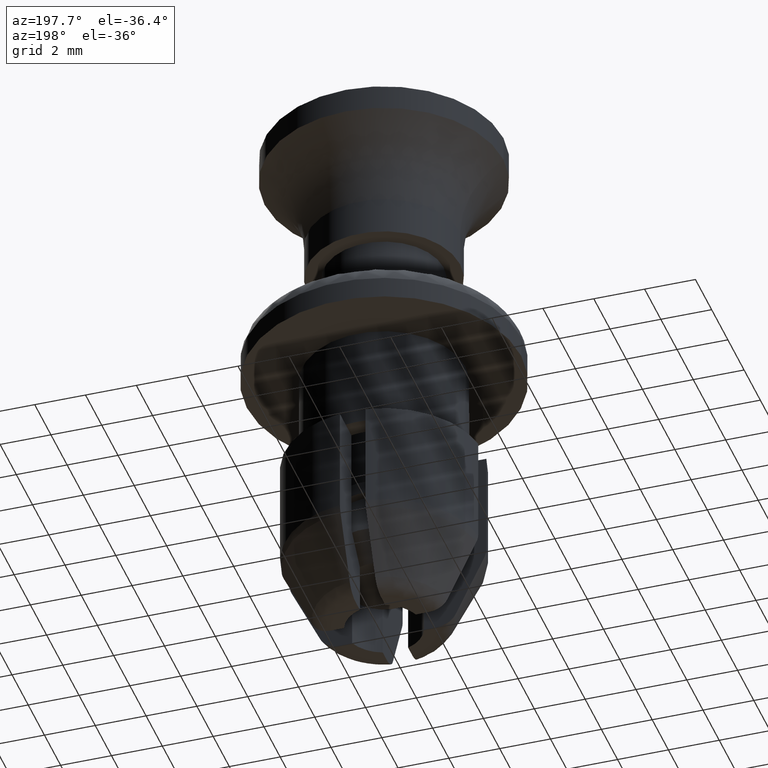
[diagram: clean part render]
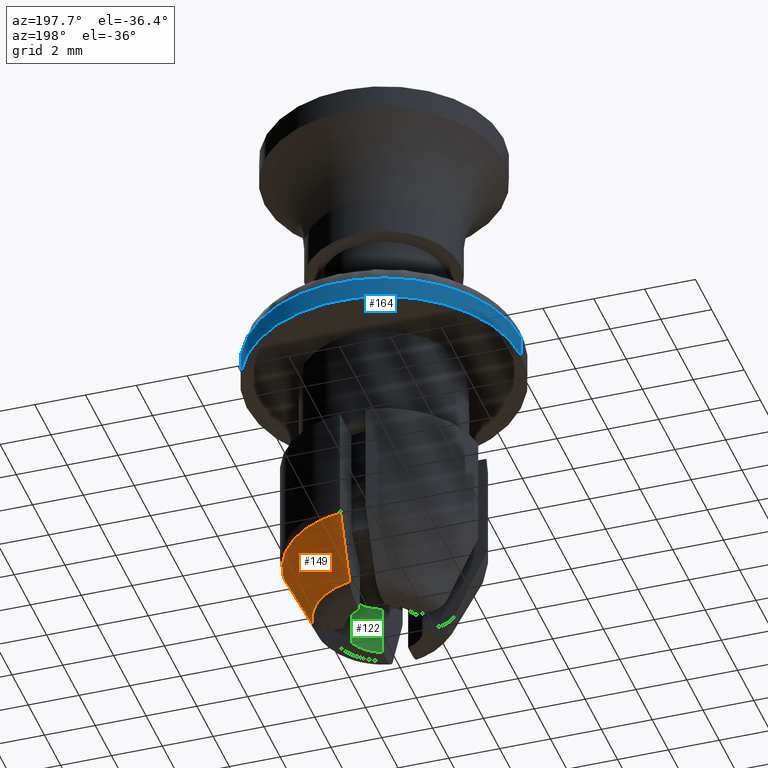
[diagram: same view with three faces highlighted in distinct colors, each labeled with its STEP entity id]
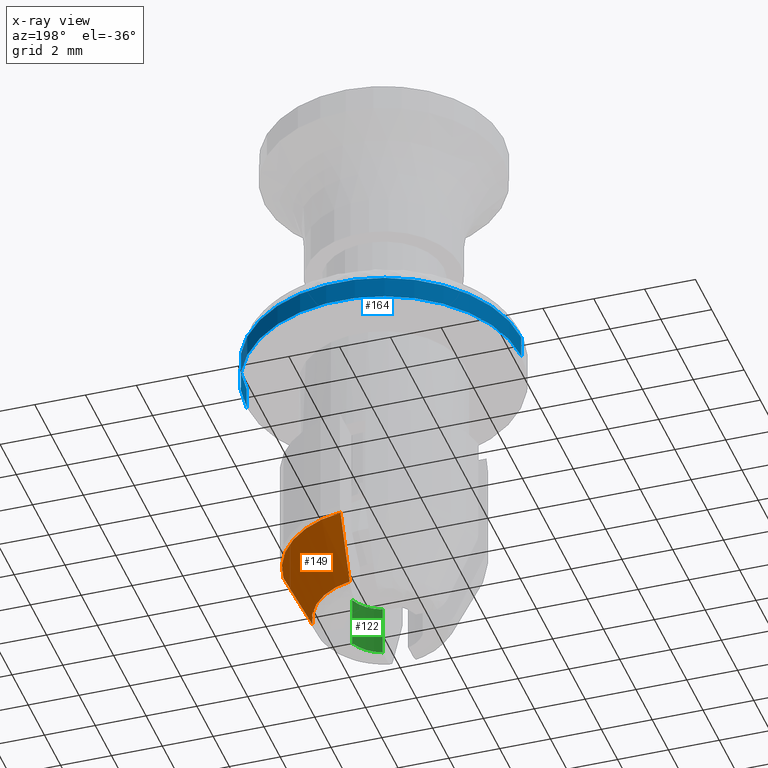
[diagram: x-ray of the same camera — body ghosted, the three highlighted faces saturated]
A machine part, auxiliary view with three faces highlighted in distinct colors.
The next image is the same camera in x-ray (body ghosted, the three faces saturated) — at least one of them is partly hidden behind the body in this view.
Their STEP definitions:

[orange] entity #149 — the highlighted face is a freeform B-spline surface patch.
#149=ADVANCED_FACE('',(#565),#564,.T.);
#564=( BOUNDED_SURFACE() B_SPLINE_SURFACE( 2,1,((#1260,#1261),(#1262,#1263),(#1264,#1265)), .UNSPECIFIED.,.F.,.F.,.F.) B_SPLINE_SURFACE_WITH_KNOTS((3,3),(2,2),(0.00000000000E+00,1.00000000000E+00),(0.00000000000E+00,1.00000000000E+00), .UNSPECIFIED. ) GEOMETRIC_REPRESENTATION_ITEM() RATIONAL_B_SPLINE_SURFACE(((1.00000000000E+00,1.00000000000E+00),(7.93286914708E-01,7.93286914708E-01),(1.00000000000E+00,1.00000000000E+00))) REPRESENTATION_ITEM('') SURFACE() );
#565=FACE_OUTER_BOUND('',#1266,.T.);
#1260=CARTESIAN_POINT('',(2.68268514984E+00,3.52884447649E-01,-1.30592680097E+01));
#1261=CARTESIAN_POINT('',(3.79721476473E+00,4.99491352885E-01,-1.06505161775E+01));
#1262=CARTESIAN_POINT('',(2.41184621184E+00,2.41184624601E+00,-1.30592680097E+01));
#1263=CARTESIAN_POINT('',(3.41385497528E+00,3.41385502364E+00,-1.06505161775E+01));
#1264=CARTESIAN_POINT('',(3.52884409643E-01,2.68268515484E+00,-1.30592680097E+01));
#1265=CARTESIAN_POINT('',(4.99491299089E-01,3.79721477180E+00,-1.06505161775E+01));
#1266=EDGE_LOOP('',(#1814,#1815,#1816,#1817));
#1814=ORIENTED_EDGE('',*,*,#2077,.F.);
#1815=ORIENTED_EDGE('',*,*,#2112,.F.);
#1816=ORIENTED_EDGE('',*,*,#2016,.F.);
#1817=ORIENTED_EDGE('',*,*,#2107,.T.);
#2016=EDGE_CURVE('',#2266,#2273,#2274,.T.);
#2077=EDGE_CURVE('',#2683,#2690,#2691,.T.);
#2107=EDGE_CURVE('',#2266,#2690,#2888,.T.);
#2112=EDGE_CURVE('',#2273,#2683,#2918,.T.);
#2266=VERTEX_POINT('',#3543);
#2273=VERTEX_POINT('',#3550);
#2274=(BOUNDED_CURVE() B_SPLINE_CURVE(3,(#3551,#3552,#3553,#3554),.UNSPECIFIED.,.F.,.F.) B_SPLINE_CURVE_WITH_KNOTS((4,4),(5.32152075698E-03,7.98447049075E-03),.UNSPECIFIED.) CURVE() GEOMETRIC_REPRESENTATION_ITEM() RATIONAL_B_SPLINE_CURVE((1.00000000000E+00,1.00000000000E+00,1.00000000000E+00,1.00000000000E+00)) REPRESENTATION_ITEM('') );
#2683=VERTEX_POINT('',#3837);
#2690=VERTEX_POINT('',#3844);
#2691=(BOUNDED_CURVE() B_SPLINE_CURVE(3,(#3845,#3846,#3847,#3848),.UNSPECIFIED.,.F.,.F.) B_SPLINE_CURVE_WITH_KNOTS((4,4),(3.59600571184E-03,6.25887595562E-03),.UNSPECIFIED.) CURVE() GEOMETRIC_REPRESENTATION_ITEM() RATIONAL_B_SPLINE_CURVE((1.00000000000E+00,1.00000000000E+00,1.00000000000E+00,1.00000000000E+00)) REPRESENTATION_ITEM('') );
#2888=CIRCLE('',#3974,3.82970000000E+00);
#2918=CIRCLE('',#3994,2.70602087899E+00);
#3543=CARTESIAN_POINT('',(5.00000000000E-01,3.79692007949E+00,-1.06510000000E+01));
#3550=CARTESIAN_POINT('',(5.00000000000E-01,2.65942644146E+00,-1.30587841873E+01));
#3551=CARTESIAN_POINT('',(5.00000000000E-01,3.79692007949E+00,-1.06510000000E+01));
#3552=CARTESIAN_POINT('',(5.00000000000E-01,3.41887801935E+00,-1.14541230100E+01));
#3553=CARTESIAN_POINT('',(5.00000000000E-01,3.04019102778E+00,-1.22569424928E+01));
#3554=CARTESIAN_POINT('',(5.00000000000E-01,2.65942644146E+00,-1.30587841873E+01));
#3837=CARTESIAN_POINT('',(2.65942644146E+00,5.00000000000E-01,-1.30587841873E+01));
#3844=CARTESIAN_POINT('',(3.79692007949E+00,5.00000000000E-01,-1.06510000000E+01));
#3845=CARTESIAN_POINT('',(2.65942644146E+00,5.00000000000E-01,-1.30587841873E+01));
#3846=CARTESIAN_POINT('',(3.04018898643E+00,5.00000000000E-01,-1.22569467916E+01));
#3847=CARTESIAN_POINT('',(3.41887766359E+00,5.00000000000E-01,-1.14541237658E+01));
#3848=CARTESIAN_POINT('',(3.79692007949E+00,5.00000000000E-01,-1.06510000000E+01));
#3971=CARTESIAN_POINT('',(0.00000000000E+00,0.00000000000E+00,-1.06510000000E+01));
#3972=DIRECTION('',(0.00000000000E+00,0.00000000000E+00,-1.00000000000E+00));
#3973=DIRECTION('',(1.00000000000E+00,-0.00000000000E+00,-0.00000000000E+00));
#3974=AXIS2_PLACEMENT_3D('',#3971,#3972,#3973);
#3991=CARTESIAN_POINT('',(0.00000000000E+00,0.00000000000E+00,-1.30587841873E+01));
#3992=DIRECTION('',(0.00000000000E+00,0.00000000000E+00,-1.00000000000E+00));
#3993=DIRECTION('',(1.00000000000E+00,-0.00000000000E+00,-0.00000000000E+00));
#3994=AXIS2_PLACEMENT_3D('',#3991,#3992,#3993);

[blue] entity #164 — the highlighted cylindrical surface (partial cylindrical patch) has radius 5.4 mm, axis along (0, 0, 1).
#164=ADVANCED_FACE('',(#715),#714,.T.);
#714=CYLINDRICAL_SURFACE('',#1396,5.40000000000E+00);
#715=FACE_OUTER_BOUND('',#1397,.T.);
#1393=CARTESIAN_POINT('',(0.00000000000E+00,0.00000000000E+00,0.00000000000E+00));
#1394=DIRECTION('',(-0.00000000000E+00,-0.00000000000E+00,1.00000000000E+00));
#1395=DIRECTION('',(1.00000000000E+00,0.00000000000E+00,0.00000000000E+00));
#1396=AXIS2_PLACEMENT_3D('',#1393,#1394,#1395);
#1397=EDGE_LOOP('',(#1882,#1883,#1884,#1885));
#1882=ORIENTED_EDGE('',*,*,#2151,.T.);
#1883=ORIENTED_EDGE('',*,*,#2152,.F.);
#1884=ORIENTED_EDGE('',*,*,#2117,.F.);
#1885=ORIENTED_EDGE('',*,*,#2153,.T.);
#2117=EDGE_CURVE('',#2952,#2953,#2954,.T.);
#2151=EDGE_CURVE('',#3149,#3148,#3168,.T.);
#2152=EDGE_CURVE('',#2953,#3148,#3174,.T.);
#2153=EDGE_CURVE('',#2952,#3149,#3180,.T.);
#2952=VERTEX_POINT('',#4015);
#2953=VERTEX_POINT('',#4016);
#2954=CIRCLE('',#4020,5.40000000000E+00);
#3148=VERTEX_POINT('',#4141);
#3149=VERTEX_POINT('',#4142);
#3168=CIRCLE('',#4156,5.40000000000E+00);
#3174=(BOUNDED_CURVE() B_SPLINE_CURVE(1,(#4157,#4158),.UNSPECIFIED.,.F.,.F.) B_SPLINE_CURVE_WITH_KNOTS((2,2),(8.33332935974E-02,9.16666633252E-01),.UNSPECIFIED.) CURVE() GEOMETRIC_REPRESENTATION_ITEM() RATIONAL_B_SPLINE_CURVE((1.00000000000E+00,1.00000000000E+00)) REPRESENTATION_ITEM('') );
#3180=(BOUNDED_CURVE() B_SPLINE_CURVE(1,(#4159,#4160),.UNSPECIFIED.,.F.,.F.) B_SPLINE_CURVE_WITH_KNOTS((2,2),(8.33333333333E-02,9.16666666667E-01),.UNSPECIFIED.) CURVE() GEOMETRIC_REPRESENTATION_ITEM() RATIONAL_B_SPLINE_CURVE((7.50000000000E-01,7.50000000000E-01)) REPRESENTATION_ITEM('') );
#4015=CARTESIAN_POINT('',(-5.40000000000E+00,0.00000000000E+00,-2.00000000000E+00));
#4016=CARTESIAN_POINT('',(5.40000000000E+00,2.96059473233E-16,-2.00000000000E+00));
#4017=CARTESIAN_POINT('',(0.00000000000E+00,0.00000000000E+00,-2.00000000000E+00));
#4018=DIRECTION('',(-0.00000000000E+00,0.00000000000E+00,-1.00000000000E+00));
#4019=DIRECTION('',(-1.00000000000E+00,-1.22460635382E-16,0.00000000000E+00));
#4020=AXIS2_PLACEMENT_3D('',#4017,#4018,#4019);
#4141=CARTESIAN_POINT('',(5.40000000000E+00,2.96059473233E-16,-1.13900000000E+00));
#4142=CARTESIAN_POINT('',(-5.40000000000E+00,0.00000000000E+00,-1.13900000000E+00));
#4153=CARTESIAN_POINT('',(0.00000000000E+00,0.00000000000E+00,-1.13900000000E+00));
#4154=DIRECTION('',(-0.00000000000E+00,0.00000000000E+00,-1.00000000000E+00));
#4155=DIRECTION('',(-1.00000000000E+00,-1.22460635382E-16,0.00000000000E+00));
#4156=AXIS2_PLACEMENT_3D('',#4153,#4154,#4155);
#4157=CARTESIAN_POINT('',(5.40000000000E+00,0.00000000000E+00,-2.00000004106E+00));
#4158=CARTESIAN_POINT('',(5.40000000000E+00,0.00000000000E+00,-1.13900003452E+00));
#4159=CARTESIAN_POINT('',(-5.40000000000E+00,-2.96059473233E-16,-2.00000000000E+00));
#4160=CARTESIAN_POINT('',(-5.40000000000E+00,-2.96059473233E-16,-1.13900000000E+00));

[green] entity #122 — the highlighted cylindrical surface (partial cylindrical patch) has radius 1.5 mm, axis along (-0, -0, -1).
#122=ADVANCED_FACE('',(#293),#292,.F.);
#292=CYLINDRICAL_SURFACE('',#1090,1.50000000000E+00);
#293=FACE_OUTER_BOUND('',#1091,.T.);
#1087=CARTESIAN_POINT('',(-1.97215226305E-31,0.00000000000E+00,-1.00610000000E+03));
#1088=DIRECTION('',(-0.00000000000E+00,-0.00000000000E+00,-1.00000000000E+00));
#1089=DIRECTION('',(-1.00000000000E+00,-0.00000000000E+00,-0.00000000000E+00));
#1090=AXIS2_PLACEMENT_3D('',#1087,#1088,#1089);
#1091=EDGE_LOOP('',(#1666,#1667,#1668,#1669));
#1666=ORIENTED_EDGE('',*,*,#2008,.F.);
#1667=ORIENTED_EDGE('',*,*,#2055,.F.);
#1668=ORIENTED_EDGE('',*,*,#2056,.F.);
#1669=ORIENTED_EDGE('',*,*,#2057,.F.);
#2008=EDGE_CURVE('',#2210,#2217,#2218,.T.);
#2055=EDGE_CURVE('',#2542,#2210,#2543,.T.);
#2056=EDGE_CURVE('',#2549,#2542,#2550,.T.);
#2057=EDGE_CURVE('',#2217,#2549,#2556,.T.);
#2210=VERTEX_POINT('',#3507);
#2217=VERTEX_POINT('',#3512);
#2218=CIRCLE('',#3516,1.50000000000E+00);
#2542=VERTEX_POINT('',#3751);
#2543=LINE('',#3752,#3753);
#2549=VERTEX_POINT('',#3755);
#2550=CIRCLE('',#3759,1.50000000000E+00);
#2556=LINE('',#3760,#3761);
#3507=CARTESIAN_POINT('',(1.41421356237E+00,-5.00000000000E-01,-1.15003633768E+01));
#3512=CARTESIAN_POINT('',(5.00000000000E-01,-1.41421356237E+00,-1.15003633768E+01));
#3513=CARTESIAN_POINT('',(0.00000000000E+00,0.00000000000E+00,-1.15003633768E+01));
#3514=DIRECTION('',(0.00000000000E+00,0.00000000000E+00,-1.00000000000E+00));
#3515=DIRECTION('',(1.00000000000E+00,-0.00000000000E+00,-0.00000000000E+00));
#3516=AXIS2_PLACEMENT_3D('',#3513,#3514,#3515);
#3751=CARTESIAN_POINT('',(1.41421356237E+00,-5.00000000000E-01,-1.35003000000E+01));
#3752=CARTESIAN_POINT('',(1.41421356237E+00,-5.00000000000E-01,-1.35003000000E+01));
#3753=VECTOR('',#3754,1.99993662322E+00);
#3754=DIRECTION('',(0.00000000000E+00,0.00000000000E+00,1.00000000000E+00));
#3755=CARTESIAN_POINT('',(5.00000000000E-01,-1.41421356237E+00,-1.35003000000E+01));
#3756=CARTESIAN_POINT('',(-1.97215226305E-31,0.00000000000E+00,-1.35003000000E+01));
#3757=DIRECTION('',(0.00000000000E+00,-0.00000000000E+00,1.00000000000E+00));
#3758=DIRECTION('',(1.00000000000E+00,-0.00000000000E+00,-0.00000000000E+00));
#3759=AXIS2_PLACEMENT_3D('',#3756,#3757,#3758);
#3760=CARTESIAN_POINT('',(5.00000000000E-01,-1.41421356237E+00,-1.15003633768E+01));
#3761=VECTOR('',#3762,1.99993662322E+00);
#3762=DIRECTION('',(0.00000000000E+00,0.00000000000E+00,-1.00000000000E+00));